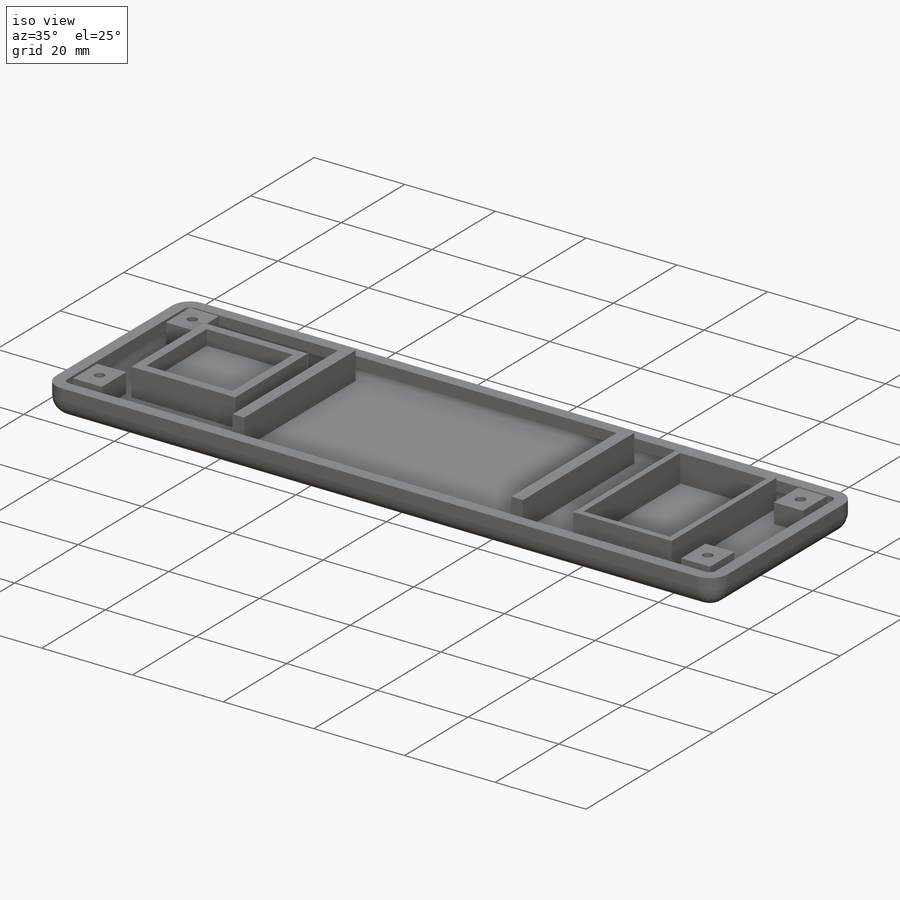
[diagram: iso view]
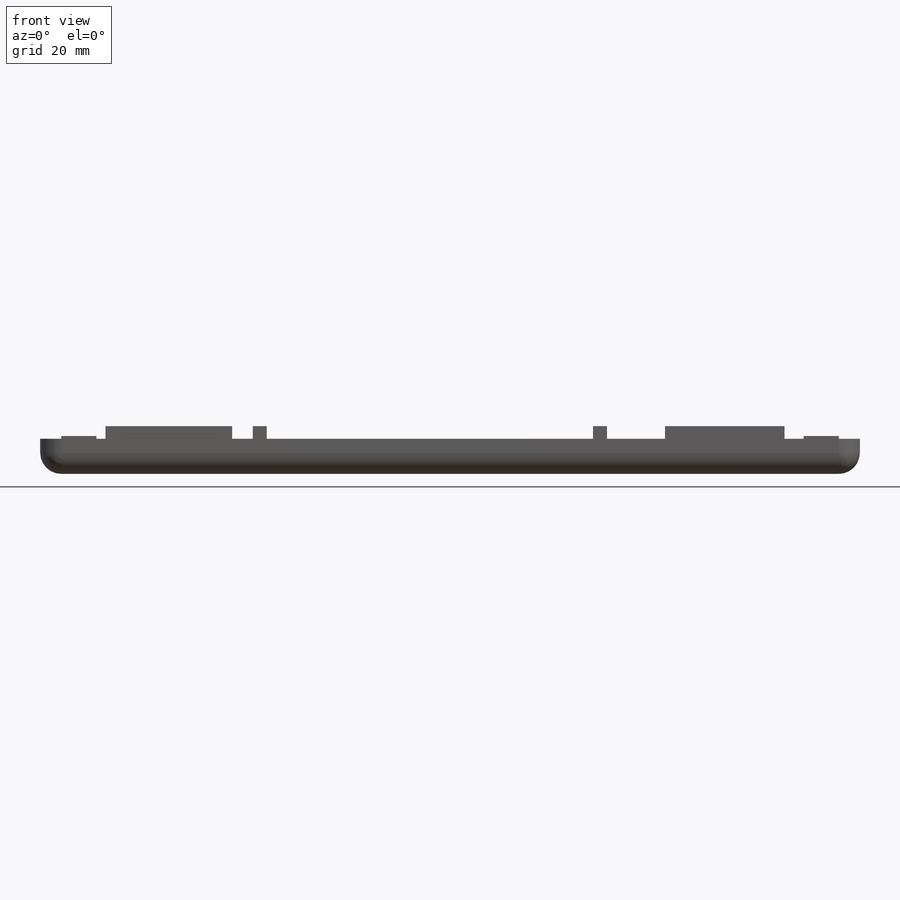
[diagram: front view]
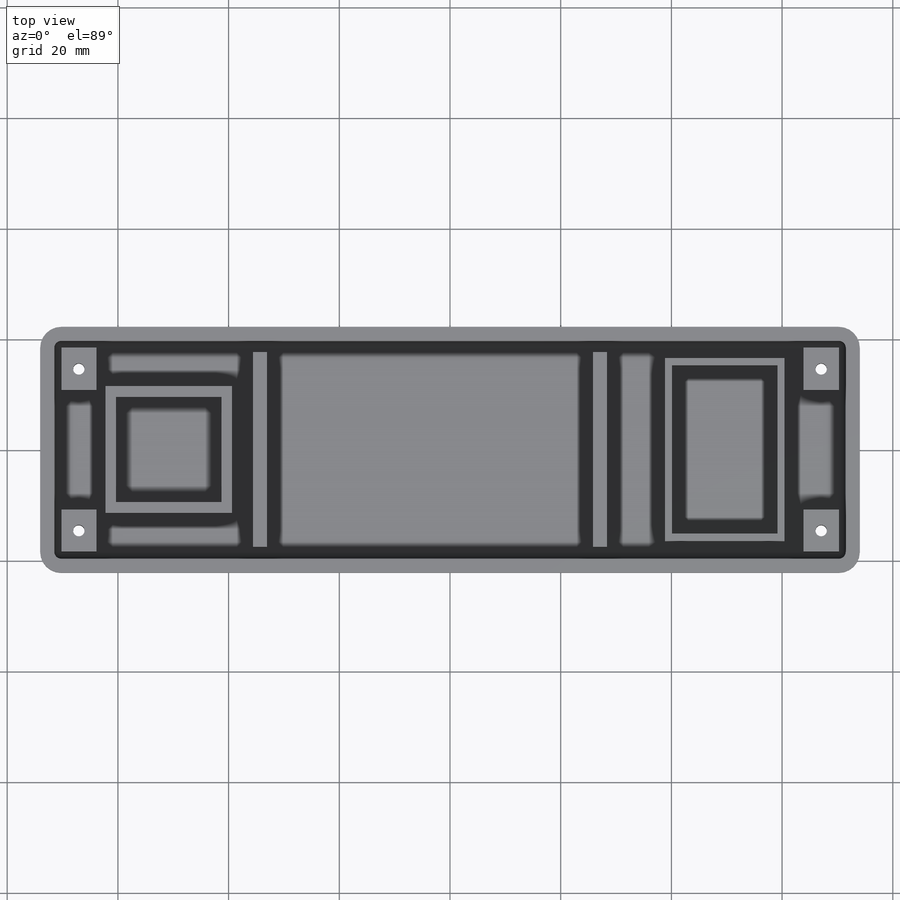
[diagram: top view]
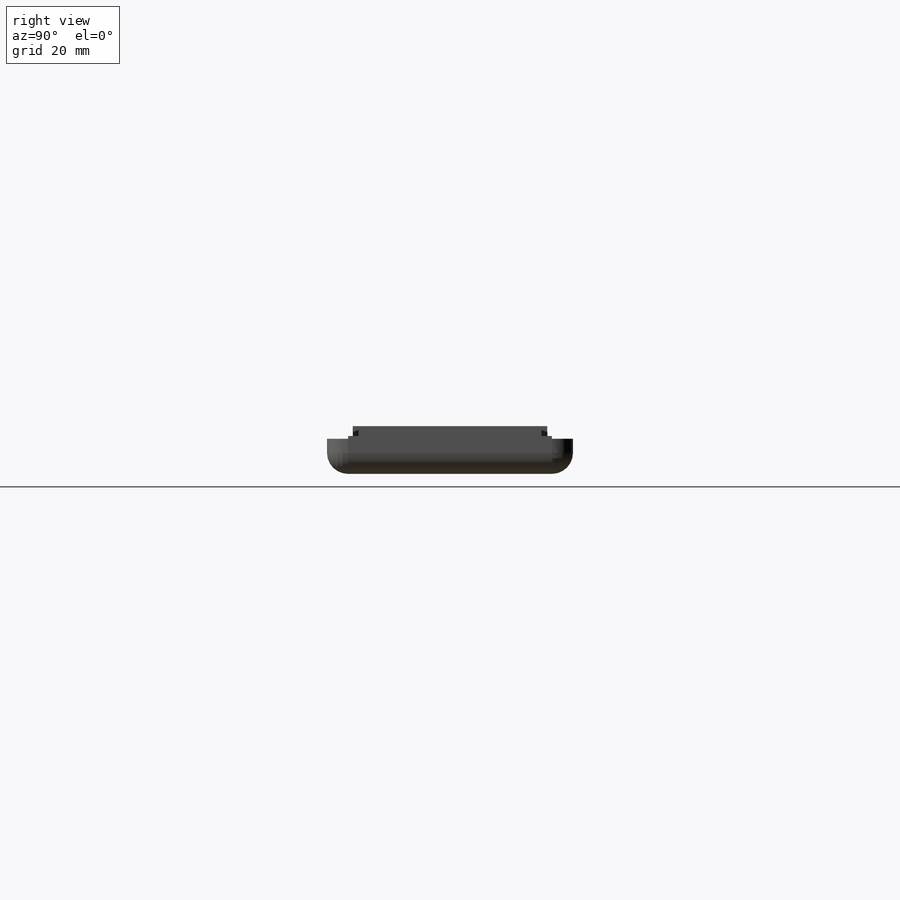
[diagram: right view]
SOLIDWORKS PART (.sldprt)
format: sldprt  version: not decoded by parser v0  size: 413,184 bytes
history: native  units: mm
features: sketch x11, extrude x5, cut_extrude x2, hole x2, material x1, fillet x1, shell x1, plane x1 + 1 further entry (+10 scaffold rows collapsed)
feature tree (35):
  scaffold x10  (default folders/planes/origin — collapsed)
  material  "Material <not specified>"
  "Annotations"  RD1=3.842654mm
  sketch  "Sketch1"
  extrude  "Boss-Extrude1"  Depth=6.35mm
  fillet  "Fillet1"  Radius=3.81mm
  shell  "Shell1"  Thickness=2.54mm
  sketch  "Sketch3"  dims[c1.D1=7.62mm c1.D2=6.35mm c1.D3=7.62mm c1.D4=6.35mm c1.D5=~11.604705mm c2.D5=90.0deg c3.D5=7.62mm c3.D6=6.35mm c3.D7=7.62mm c3.D8=6.35mm]
  extrude  "Boss-Extrude2"  Depth=4.318mm
  plane  "Plane1"  Offset=0mm
  sketch  "Sketch5"
  extrude  "Boss-Extrude3"  Depth=6.096mm
  sketch  "Sketch7"  dims[D1=19.05mm D2=19.05mm]
  cut_extrude  "Cut-Extrude1"  Depth=3.302mm
  sketch  "Sketch8"  dims[D1=21.59mm D2=33.02mm]
  extrude  "Boss-Extrude4"  Depth=6.096mm
  sketch  "Sketch9"  dims[D1=2.54mm D2=2.54mm D3=58.928mm]
  extrude  "Boss-Extrude5"  Depth=6.096mm
  sketch  "Sketch12"  dims[D1=30.48mm D2=19.05mm]
  cut_extrude  "Cut-Extrude2"  [1 undecoded]
  hole  "CBORE for #1 Pan Head Machine Screw2"  Diameter=2.0574mm Depth=8.636mm
  sketch  "Sketch14"
  sketch  "Sketch13"  dims[hole-wizard template sketch: 41 standard entries collapsed; hole parameters kept: c12.Thru Hole Dia.=2.0574mm c12.Thru Hole Depth=8.636mm c12.C'Bore Dia.=~4.36626mm c12.C'Bore Depth=1.3462mm c12.D1=~2.18313mm]
  hole  "CBORE for #1 Pan Head Machine Screw3"  Diameter=2.0574mm Depth=8.636mm
  sketch  "Sketch24"
  sketch  "Sketch23"  dims[hole-wizard template sketch: 41 standard entries collapsed; hole parameters kept: c12.Thru Hole Dia.=2.0574mm c12.Thru Hole Depth=8.636mm c12.C'Bore Dia.=~4.36626mm c12.C'Bore Depth=1.3462mm]
decode coverage: 17 of 22 modeling features carry decoded parameters; 1 rows unclassified (native names shown)
note: ~ marks probable driven/reference dimensions
note: 1 parameter value undecoded
note: suppression state not decoded; provenance and decode notes live in map.json
